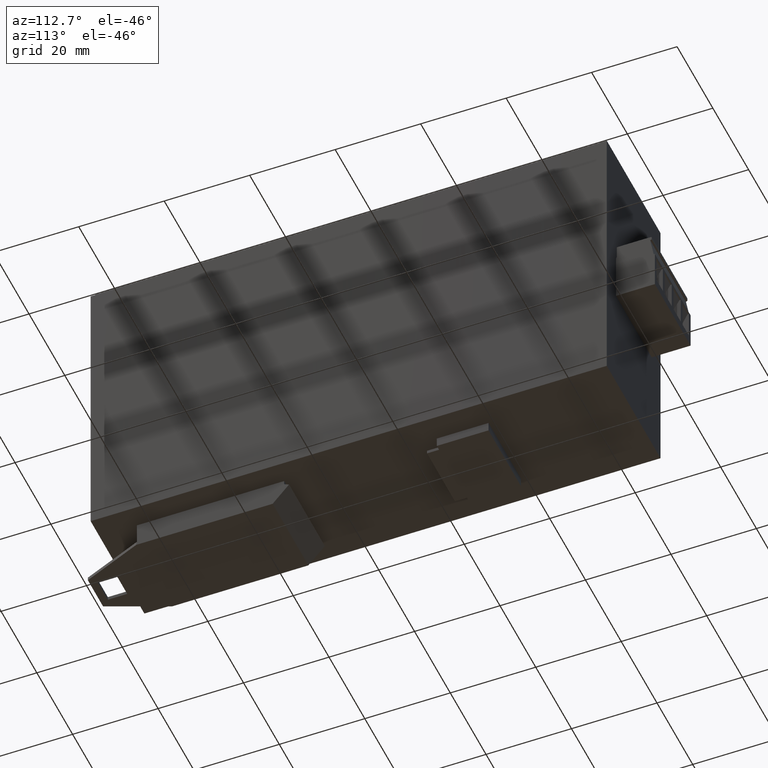
[diagram: clean part render]
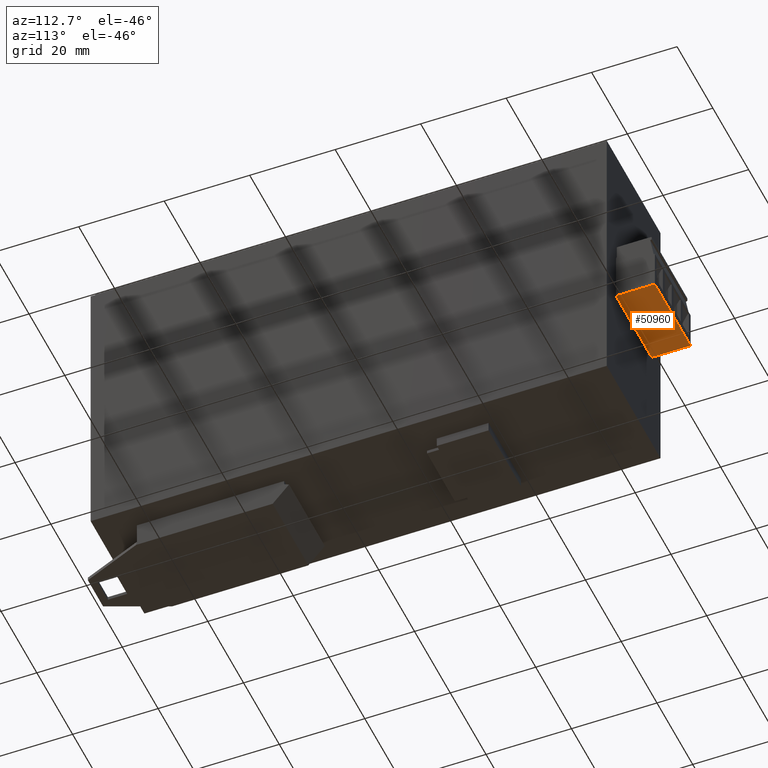
[diagram: same view with one face highlighted and labeled with its STEP entity id]
A machine part, auxiliary view. The second image highlights one B-rep face of the part: STEP entity #50960.
In plain terms, the highlighted planar face has unit normal (-0, 0, -1).
Its self-contained STEP definition (entity closure, byte-faithful):
#5850=CARTESIAN_POINT('',(-22.1173015753009,58.1578968253969,
-43.209999993));
#5860=VERTEX_POINT('',#5850);
#5890=CARTESIAN_POINT('',(0.,58.1578968253969,-43.209999993));
#5900=DIRECTION('',(-1.,0.,1.11022302462516E-16));
#5910=VECTOR('',#5900,1.);
#5920=LINE('',#5890,#5910);
#5930=CARTESIAN_POINT('',(-42.1173015753009,58.1578968253969,
-43.209999993));
#5940=VERTEX_POINT('',#5930);
#5950=EDGE_CURVE('',#5860,#5940,#5920,.T.);
#50660=CARTESIAN_POINT('',(-22.1172985753008,67.2278998167968,
-43.209999993));
#50670=DIRECTION('',(-1.11022302462516E-16,6.6822090395713E-16,-1.));
#50680=DIRECTION('',(-1.56125112837912E-17,-1.,-6.6822090395713E-16));
#50690=AXIS2_PLACEMENT_3D('',#50660,#50670,#50680);
#50700=PLANE('',#50690);
#50710=CARTESIAN_POINT('',(-42.1173015753009,58.9822896835067,
-43.209999993));
#50720=DIRECTION('',(1.56125112837912E-17,1.,6.6822090395713E-16));
#50730=VECTOR('',#50720,1.);
#50740=LINE('',#50710,#50730);
#50750=CARTESIAN_POINT('',(-42.1173015753009,67.2578968167971,
-43.209999993));
#50760=VERTEX_POINT('',#50750);
#50770=EDGE_CURVE('',#5940,#50760,#50740,.T.);
#50780=ORIENTED_EDGE('',*,*,#50770,.T.);
#50790=ORIENTED_EDGE('',*,*,#5950,.T.);
#50800=CARTESIAN_POINT('',(-22.1173015753009,58.9822896835067,
-43.209999993));
#50810=DIRECTION('',(-1.56125112837912E-17,-1.,-6.6822090395713E-16));
#50820=VECTOR('',#50810,1.);
#50830=LINE('',#50800,#50820);
#50840=CARTESIAN_POINT('',(-22.1173015753009,67.2578968167971,
-43.209999993));
#50850=VERTEX_POINT('',#50840);
#50860=EDGE_CURVE('',#50850,#5860,#50830,.T.);
#50870=ORIENTED_EDGE('',*,*,#50860,.T.);
#50880=CARTESIAN_POINT('',(-32.3532757178843,67.2578968167971,
-43.209999993));
#50890=DIRECTION('',(-1.,1.56125112837911E-17,1.11022302462516E-16));
#50900=VECTOR('',#50890,1.);
#50910=LINE('',#50880,#50900);
#50920=EDGE_CURVE('',#50850,#50760,#50910,.T.);
#50930=ORIENTED_EDGE('',*,*,#50920,.F.);
#50940=EDGE_LOOP('',(#50930,#50870,#50790,#50780));
#50950=FACE_OUTER_BOUND('',#50940,.T.);
#50960=ADVANCED_FACE('',(#50950),#50700,.T.);